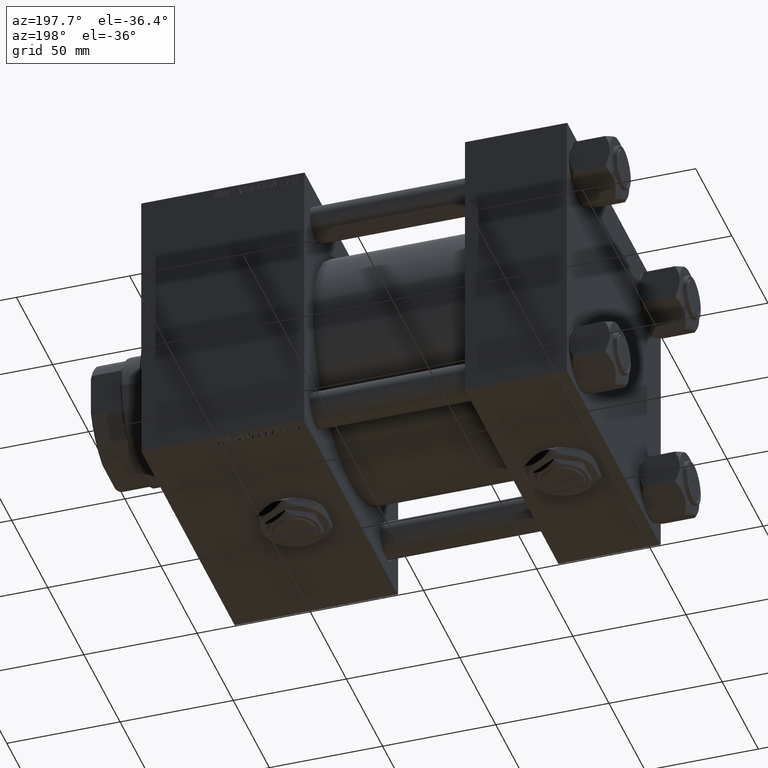
[diagram: clean part render]
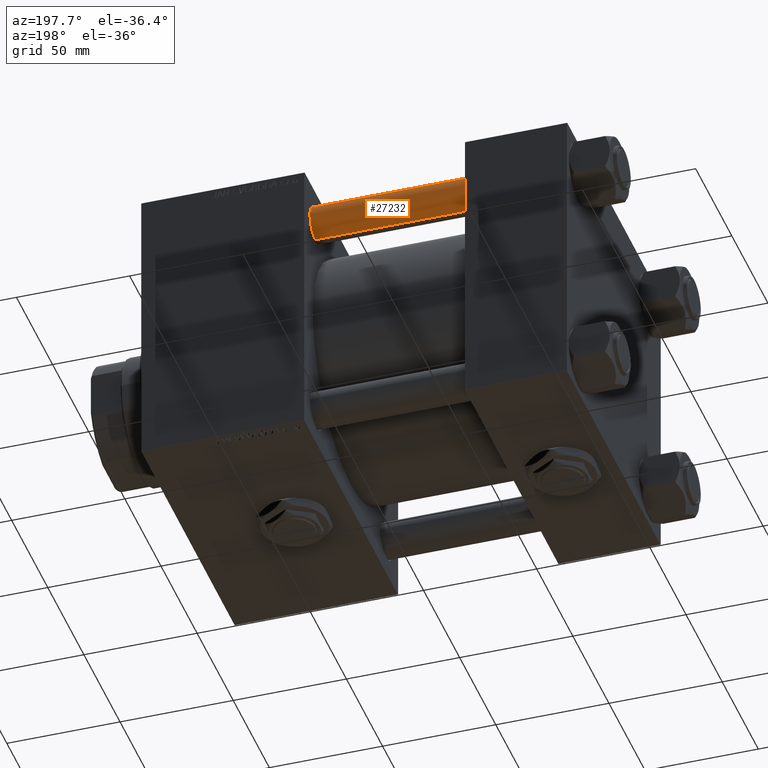
[diagram: same view with one face highlighted and labeled with its STEP entity id]
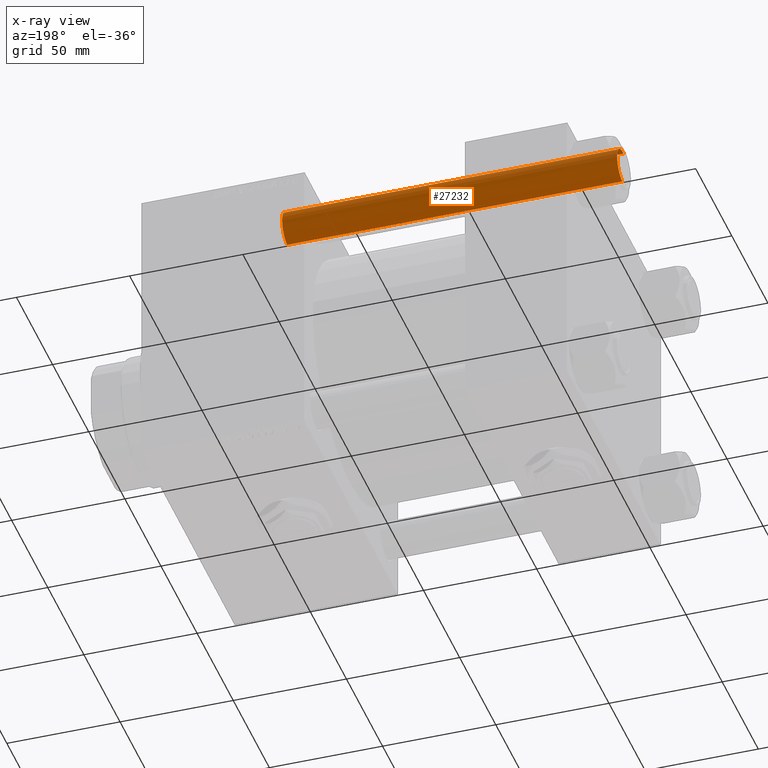
[diagram: x-ray of the same camera — body ghosted, the highlighted face saturated]
A machine part, auxiliary view. The second image highlights one B-rep face of the part: STEP entity #27232.
The next image is the same camera in x-ray: the body ghosted, the highlighted face saturated — about 0% of this face is hidden behind the body in this view.
In plain terms, the highlighted cylindrical surface (edge-blend (fillet) strip) has radius 8 mm, axis along (-1, 0, 0).
Its self-contained STEP definition (entity closure, byte-faithful):
#78 = VERTEX_POINT ( 'NONE', #20900 ) ;
#2279 = CIRCLE ( 'NONE', #50889, 8.000000000000000000 ) ;
#3979 = CARTESIAN_POINT ( 'NONE',  ( 8.000000000000000000, 9.797174393178825657E-16, 148.5000000000000000 ) ) ;
#4985 = DIRECTION ( 'NONE',  ( -0.000000000000000000, -0.000000000000000000, -1.000000000000000000 ) ) ;
#5325 = CARTESIAN_POINT ( 'NONE',  ( -8.000000000000000000, 0.000000000000000000, 149.0000000000000000 ) ) ;
#5476 = DIRECTION ( 'NONE',  ( -0.000000000000000000, -0.000000000000000000, -1.000000000000000000 ) ) ;
#5665 = EDGE_CURVE ( 'NONE', #8684, #78, #49856, .T. ) ;
#5804 = EDGE_CURVE ( 'NONE', #78, #42641, #11745, .T. ) ;
#5993 = CARTESIAN_POINT ( 'NONE',  ( 0.000000000000000000, 0.000000000000000000, 149.0000000000000000 ) ) ;
#6029 = CARTESIAN_POINT ( 'NONE',  ( 0.000000000000000000, 0.000000000000000000, 0.5000000000000281997 ) ) ;
#6618 = AXIS2_PLACEMENT_3D ( 'NONE', #6029, #31109, #47397 ) ;
#8684 = VERTEX_POINT ( 'NONE', #3979 ) ;
#8823 = DIRECTION ( 'NONE',  ( -0.000000000000000000, -0.000000000000000000, -1.000000000000000000 ) ) ;
#10781 = ORIENTED_EDGE ( 'NONE', *, *, #49508, .F. ) ;
#11575 = AXIS2_PLACEMENT_3D ( 'NONE', #5993, #5476, #22037 ) ;
#11745 = CIRCLE ( 'NONE', #6618, 8.000000000000000000 ) ;
#11889 = ORIENTED_EDGE ( 'NONE', *, *, #5804, .T. ) ;
#13806 = CARTESIAN_POINT ( 'NONE',  ( 8.000000000000000000, 9.797174393178825657E-16, 149.0000000000000000 ) ) ;
#14940 = VERTEX_POINT ( 'NONE', #34205 ) ;
#15502 = ORIENTED_EDGE ( 'NONE', *, *, #5665, .T. ) ;
#16030 = VECTOR ( 'NONE', #4985, 1000.000000000000000 ) ;
#17197 = EDGE_LOOP ( 'NONE', ( #36817, #15502, #11889, #10781 ) ) ;
#20900 = CARTESIAN_POINT ( 'NONE',  ( 8.000000000000000000, 9.797174393178825657E-16, 0.5000000000000281997 ) ) ;
#22037 = DIRECTION ( 'NONE',  ( -1.000000000000000000, 0.000000000000000000, 0.000000000000000000 ) ) ;
#27232 = ADVANCED_FACE ( 'NONE', ( #30820 ), #42582, .T. ) ;
#29371 = LINE ( 'NONE', #5325, #42429 ) ;
#30542 = DIRECTION ( 'NONE',  ( 1.000000000000000000, 0.000000000000000000, 0.000000000000000000 ) ) ;
#30820 = FACE_OUTER_BOUND ( 'NONE', #17197, .T. ) ;
#31109 = DIRECTION ( 'NONE',  ( -0.000000000000000000, -0.000000000000000000, 1.000000000000000000 ) ) ;
#34205 = CARTESIAN_POINT ( 'NONE',  ( -8.000000000000000000, 0.000000000000000000, 148.5000000000000000 ) ) ;
#34283 = CARTESIAN_POINT ( 'NONE',  ( 0.000000000000000000, 0.000000000000000000, 148.5000000000000000 ) ) ;
#36817 = ORIENTED_EDGE ( 'NONE', *, *, #47132, .T. ) ;
#42429 = VECTOR ( 'NONE', #8823, 1000.000000000000000 ) ;
#42582 = CYLINDRICAL_SURFACE ( 'NONE', #11575, 8.000000000000000000 ) ;
#42641 = VERTEX_POINT ( 'NONE', #46151 ) ;
#46151 = CARTESIAN_POINT ( 'NONE',  ( -8.000000000000000000, 0.000000000000000000, 0.5000000000000281997 ) ) ;
#46832 = DIRECTION ( 'NONE',  ( 0.000000000000000000, 0.000000000000000000, -1.000000000000000000 ) ) ;
#47132 = EDGE_CURVE ( 'NONE', #14940, #8684, #2279, .T. ) ;
#47397 = DIRECTION ( 'NONE',  ( 1.000000000000000000, 0.000000000000000000, 0.000000000000000000 ) ) ;
#49508 = EDGE_CURVE ( 'NONE', #14940, #42641, #29371, .T. ) ;
#49856 = LINE ( 'NONE', #13806, #16030 ) ;
#50889 = AXIS2_PLACEMENT_3D ( 'NONE', #34283, #46832, #30542 ) ;